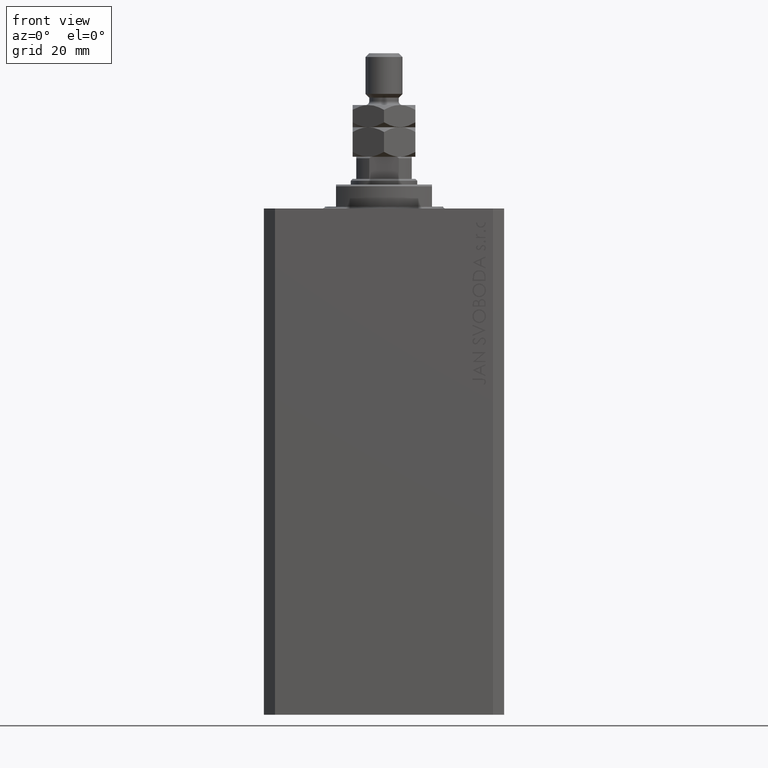
[diagram: clean part render]
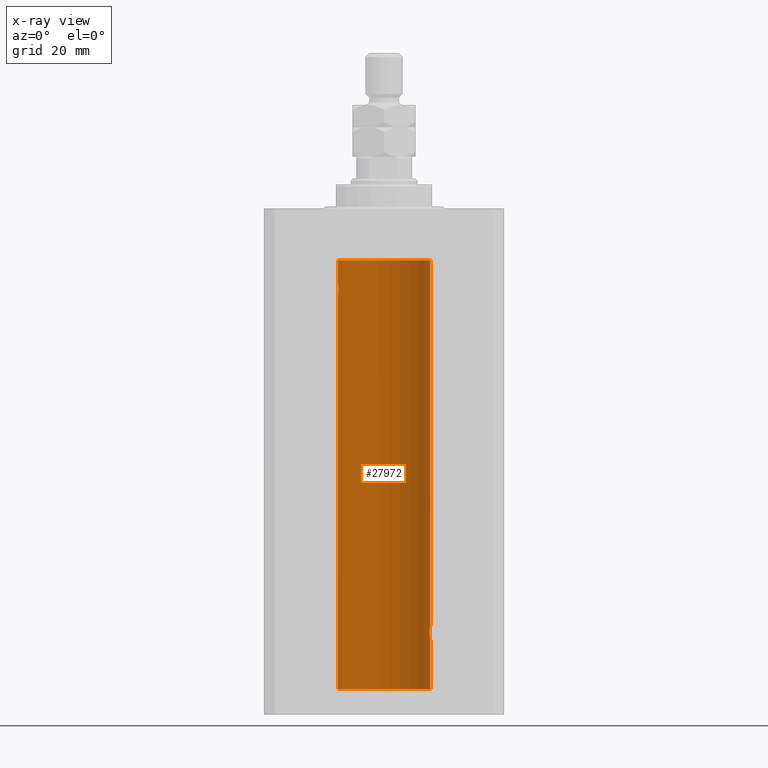
[diagram: x-ray — body ghosted, one internal face saturated and labeled with its STEP entity id]
A machine part, front view, then the same camera in x-ray: the body is ghosted and one INTERNAL B-rep face — a face not visible from any outside direction — is saturated and labeled: STEP entity #27972.
In plain terms, the highlighted cylindrical surface (partial cylindrical patch) has radius 12.5 mm, axis along (0, 0, 1).
Its self-contained STEP definition (entity closure, byte-faithful):
#216 = CARTESIAN_POINT ( 'NONE',  ( 12.34779119491631683, 1.947363444907009633, -115.5250277516825861 ) ) ;
#410 = ORIENTED_EDGE ( 'NONE', *, *, #29323, .T. ) ;
#990 = FACE_OUTER_BOUND ( 'NONE', #2066, .T. ) ;
#2066 = EDGE_LOOP ( 'NONE', ( #10786, #28945, #34960, #20145, #10542, #410, #36216, #27094, #30221 ) ) ;
#2603 = CARTESIAN_POINT ( 'NONE',  ( -12.43019346654084956, 1.322451657002078340, -20.49398366327208620 ) ) ;
#2931 = VERTEX_POINT ( 'NONE', #33402 ) ;
#3010 = CARTESIAN_POINT ( 'NONE',  ( 12.50000000000000000, 0.000000000000000000, -13.99999999999999822 ) ) ;
#3338 = CARTESIAN_POINT ( 'NONE',  ( -12.33895470450623044, 2.000049200055401766, -22.12992629360264729 ) ) ;
#3441 = CARTESIAN_POINT ( 'NONE',  ( 12.44079900692650931, 1.220007525301739282, -116.5901757908366534 ) ) ;
#3461 = VERTEX_POINT ( 'NONE', #34780 ) ;
#5077 = CARTESIAN_POINT ( 'NONE',  ( 12.46910683544638232, 0.8866026273585037032, -113.2024786368969700 ) ) ;
#5289 = LINE ( 'NONE', #31692, #35742 ) ;
#6055 = CARTESIAN_POINT ( 'NONE',  ( -12.40913174964213184, 1.507394620545641439, -23.32102833500698225 ) ) ;
#6288 = CARTESIAN_POINT ( 'NONE',  ( -12.46021263690096958, 1.002494658017156981, -20.26446744561863156 ) ) ;
#6546 = CARTESIAN_POINT ( 'NONE',  ( -12.44076681548080288, 1.220297236145718944, -23.58991408680628155 ) ) ;
#7782 = CARTESIAN_POINT ( 'NONE',  ( 12.50000000000000000, -7.266276684081261841E-23, -113.0000000000000142 ) ) ;
#8104 = VERTEX_POINT ( 'NONE', #18852 ) ;
#8530 = VERTEX_POINT ( 'NONE', #3010 ) ;
#9747 = CARTESIAN_POINT ( 'NONE',  ( -12.46903010196599304, 0.8876934327478135378, -20.20300788371381984 ) ) ;
#10542 = ORIENTED_EDGE ( 'NONE', *, *, #26841, .T. ) ;
#10589 = CARTESIAN_POINT ( 'NONE',  ( 12.33896267925302759, 2.000000000000248246, -115.2614317422079040 ) ) ;
#10786 = ORIENTED_EDGE ( 'NONE', *, *, #18906, .F. ) ;
#10987 = EDGE_CURVE ( 'NONE', #12919, #43431, #5289, .T. ) ;
#11230 = CARTESIAN_POINT ( 'NONE',  ( 0.000000000000000000, 0.000000000000000000, -130.0999999999999943 ) ) ;
#11305 = CARTESIAN_POINT ( 'NONE',  ( 12.50000000000000000, 0.000000000000000000, -130.0999999999999943 ) ) ;
#11680 = CARTESIAN_POINT ( 'NONE',  ( -12.50000000000000533, 0.1306394121199390135, -24.00000000000000711 ) ) ;
#11731 = CARTESIAN_POINT ( 'NONE',  ( 12.44079117518645639, 1.220047488436368122, -113.4098967633508437 ) ) ;
#12032 = DIRECTION ( 'NONE',  ( 0.000000000000000000, 0.000000000000000000, 1.000000000000000000 ) ) ;
#12308 = B_SPLINE_CURVE_WITH_KNOTS ( 'NONE', 3,
 ( #17880, #43541, #37122, #40079, #29229, #9747, #6288, #44272, #2603, #32697, #25280, #14428, #29477, #3338, #22074, #47726, #13938, #18369, #24791, #39846, #6055, #21091, #6546, #36142, #21588, #36632, #26006, #34625, #11680, #45468 ),
 .UNSPECIFIED., .F., .F.,
 ( 4, 2, 2, 2, 2, 2, 2, 2, 2, 2, 2, 2, 2, 2, 4 ),
 ( 1.814683826656258666E-20, 0.0003914362731607577369, 0.0007828725463215154739, 0.001174308819482273265, 0.001565745092643030948, 0.002348617638964546530, 0.003131490185286061895, 0.003522926458446825216, 0.003914362731607588103, 0.004305799004768351423, 0.004697235277929114744, 0.005088671551089878065, 0.005480107824250641385, 0.005871544097411404706, 0.006262980370572168026 ),
 .UNSPECIFIED. ) ;
#12463 = CARTESIAN_POINT ( 'NONE',  ( 12.37021546997940291, 1.797317011867403114, -114.1129511974108510 ) ) ;
#12919 = VERTEX_POINT ( 'NONE', #18296 ) ;
#13485 = EDGE_CURVE ( 'NONE', #38896, #8104, #14769, .T. ) ;
#13938 = CARTESIAN_POINT ( 'NONE',  ( -12.35517291625592051, 1.897967064543089721, -22.64415233770293412 ) ) ;
#14041 = CARTESIAN_POINT ( 'NONE',  ( 12.50000000000000000, 2.320363022323678888E-15, -117.0000000000000142 ) ) ;
#14363 = CARTESIAN_POINT ( 'NONE',  ( 12.50000000000000000, 0.000000000000000000, -130.0999999999999943 ) ) ;
#14428 = CARTESIAN_POINT ( 'NONE',  ( -12.34781876294798053, 1.947190906025043633, -21.47436412829509678 ) ) ;
#14769 = LINE ( 'NONE', #11305, #19737 ) ;
#15674 = CARTESIAN_POINT ( 'NONE',  ( 12.35520276972935427, 1.897773362058238877, -114.3552827863433947 ) ) ;
#16433 = EDGE_CURVE ( 'NONE', #38896, #22159, #44149, .T. ) ;
#16774 = CARTESIAN_POINT ( 'NONE',  ( 12.49789833780794446, 0.2625555164371021766, -116.9869817082214922 ) ) ;
#16977 = AXIS2_PLACEMENT_3D ( 'NONE', #42907, #22115, #36676 ) ;
#17880 = CARTESIAN_POINT ( 'NONE',  ( -12.50000000000000000, 1.867773856434666690E-17, -20.00000000000000000 ) ) ;
#17919 = CYLINDRICAL_SURFACE ( 'NONE', #16977, 12.50000000000000000 ) ;
#17981 = CARTESIAN_POINT ( 'NONE',  ( 12.46901623405144122, 0.8878913781257877780, -116.7968965171755258 ) ) ;
#18296 = CARTESIAN_POINT ( 'NONE',  ( -12.50000000000000000, 1.867773856434666690E-17, -20.00000000000000000 ) ) ;
#18369 = CARTESIAN_POINT ( 'NONE',  ( -12.37018026341338839, 1.797558627508998086, -22.88656313533016373 ) ) ;
#18852 = CARTESIAN_POINT ( 'NONE',  ( 12.50000000000000000, 2.320363022323678888E-15, -117.0000000000000142 ) ) ;
#18906 = EDGE_CURVE ( 'NONE', #22159, #25481, #40262, .T. ) ;
#18968 = AXIS2_PLACEMENT_3D ( 'NONE', #11230, #41314, #29258 ) ;
#19142 = CARTESIAN_POINT ( 'NONE',  ( 12.49788668346399945, 0.2632864803365707607, -113.0130897583833587 ) ) ;
#19737 = VECTOR ( 'NONE', #45093, 1000.000000000000000 ) ;
#20145 = ORIENTED_EDGE ( 'NONE', *, *, #28903, .T. ) ;
#20918 = CARTESIAN_POINT ( 'NONE',  ( 12.50000000000000000, 0.000000000000000000, -130.0999999999999943 ) ) ;
#21091 = CARTESIAN_POINT ( 'NONE',  ( -12.43034574091277911, 1.321095788880539024, -23.50733550364322255 ) ) ;
#21471 = CARTESIAN_POINT ( 'NONE',  ( -12.50000000000000000, 1.530808498934191521E-15, -130.0999999999999943 ) ) ;
#21588 = CARTESIAN_POINT ( 'NONE',  ( -12.46909283808506430, 0.8868029758979402155, -23.79742491916155345 ) ) ;
#22074 = CARTESIAN_POINT ( 'NONE',  ( -12.34109209020652465, 1.986986967296539897, -22.26269462454597914 ) ) ;
#22115 = DIRECTION ( 'NONE',  ( -0.000000000000000000, -0.000000000000000000, 1.000000000000000000 ) ) ;
#22159 = VERTEX_POINT ( 'NONE', #21471 ) ;
#22178 = CARTESIAN_POINT ( 'NONE',  ( 12.39869754437268590, 1.598954131913722820, -116.2293215281301286 ) ) ;
#22416 = CARTESIAN_POINT ( 'NONE',  ( 12.37760587642916477, 1.747868572747719229, -116.0063965316900152 ) ) ;
#22576 = CIRCLE ( 'NONE', #35962, 12.50000000000000000 ) ;
#23321 = CARTESIAN_POINT ( 'NONE',  ( 12.34110728646152388, 1.986893050944454453, -114.7366134776498541 ) ) ;
#23813 = CARTESIAN_POINT ( 'NONE',  ( 12.46011632531798874, 1.003644408234883434, -113.2651679968767127 ) ) ;
#24058 = CARTESIAN_POINT ( 'NONE',  ( -12.50000000000000000, 1.530808498934191521E-15, -13.99999999999999822 ) ) ;
#24791 = CARTESIAN_POINT ( 'NONE',  ( -12.37922086519035325, 1.734998657226764829, -23.00335814299181436 ) ) ;
#25211 = DIRECTION ( 'NONE',  ( -0.000000000000000000, -0.000000000000000000, 1.000000000000000000 ) ) ;
#25280 = CARTESIAN_POINT ( 'NONE',  ( -12.37764291807175354, 1.747608771958140794, -20.99316879552500481 ) ) ;
#25392 = CARTESIAN_POINT ( 'NONE',  ( 12.46019522898365217, 1.002712894177336223, -116.7354089602759899 ) ) ;
#25481 = VERTEX_POINT ( 'NONE', #35903 ) ;
#25717 = VECTOR ( 'NONE', #25211, 1000.000000000000000 ) ;
#26006 = CARTESIAN_POINT ( 'NONE',  ( -12.48983485452574982, 0.5201193324741355539, -23.93561774521849372 ) ) ;
#26841 = EDGE_CURVE ( 'NONE', #3461, #2931, #38373, .T. ) ;
#27094 = ORIENTED_EDGE ( 'NONE', *, *, #10987, .F. ) ;
#27268 = CARTESIAN_POINT ( 'NONE',  ( 12.39867611624532806, 1.590019252152828910, -113.7798449592961276 ) ) ;
#27972 = ADVANCED_FACE ( 'NONE', ( #990 ), #17919, .F. ) ;
#28903 = EDGE_CURVE ( 'NONE', #8104, #3461, #30595, .T. ) ;
#28945 = ORIENTED_EDGE ( 'NONE', *, *, #16433, .F. ) ;
#29229 = CARTESIAN_POINT ( 'NONE',  ( -12.48390768591463207, 0.6455696738844916016, -20.10252270298193977 ) ) ;
#29258 = DIRECTION ( 'NONE',  ( 1.000000000000000000, 0.000000000000000000, 0.000000000000000000 ) ) ;
#29323 = EDGE_CURVE ( 'NONE', #2931, #8530, #47169, .T. ) ;
#29402 = CARTESIAN_POINT ( 'NONE',  ( -12.50000000000000000, 1.530808498934191521E-15, -130.0999999999999943 ) ) ;
#29477 = CARTESIAN_POINT ( 'NONE',  ( -12.33897869807161385, 1.999901172190678089, -21.73788193668374547 ) ) ;
#30221 = ORIENTED_EDGE ( 'NONE', *, *, #38244, .T. ) ;
#30304 = CARTESIAN_POINT ( 'NONE',  ( 12.33896267925302759, 2.000000000000247802, -115.0000000000000142 ) ) ;
#30490 = CARTESIAN_POINT ( 'NONE',  ( 12.34924836377099844, 1.935649219704934865, -114.4800206212716631 ) ) ;
#30595 = B_SPLINE_CURVE_WITH_KNOTS ( 'NONE', 3,
 ( #14041, #44135, #16774, #37227, #41392, #17981, #25392, #3441, #33301, #22178, #22416, #216, #10589, #30304 ),
 .UNSPECIFIED., .F., .F.,
 ( 4, 2, 2, 2, 2, 2, 4 ),
 ( 2.254408494944823136E-18, 0.0003915305205218102386, 0.0007830610410436180920, 0.001174591561565426108, 0.001566122082087234016, 0.002349183123130850048, 0.003132244164174466730 ),
 .UNSPECIFIED. ) ;
#31268 = DIRECTION ( 'NONE',  ( 1.000000000000000000, 0.000000000000000000, 0.000000000000000000 ) ) ;
#31692 = CARTESIAN_POINT ( 'NONE',  ( -12.50000000000000000, 1.530808498934191521E-15, -130.0999999999999943 ) ) ;
#32146 = CARTESIAN_POINT ( 'NONE',  ( 12.43037348241797524, 1.320834183883837554, -113.4924383770429728 ) ) ;
#32426 = DIRECTION ( 'NONE',  ( -0.000000000000000000, -0.000000000000000000, 1.000000000000000000 ) ) ;
#32697 = CARTESIAN_POINT ( 'NONE',  ( -12.39873273758732175, 1.598680238462371062, -20.77033506126851137 ) ) ;
#33301 = CARTESIAN_POINT ( 'NONE',  ( 12.43016561391612917, 1.322713721413880661, -116.5057887783670196 ) ) ;
#33402 = CARTESIAN_POINT ( 'NONE',  ( 12.50000000000000000, -7.266276684081261841E-23, -113.0000000000000142 ) ) ;
#34210 = CARTESIAN_POINT ( 'NONE',  ( 12.40916530024876430, 1.507117913375715990, -113.6786595504900674 ) ) ;
#34625 = CARTESIAN_POINT ( 'NONE',  ( -12.49788564268284041, 0.2633501011236127343, -23.98690384766255335 ) ) ;
#34659 = EDGE_CURVE ( 'NONE', #8530, #43431, #22576, .T. ) ;
#34679 = CARTESIAN_POINT ( 'NONE',  ( 12.48983962833819028, 0.5199974825204898288, -113.0643516080801874 ) ) ;
#34780 = CARTESIAN_POINT ( 'NONE',  ( 12.33896267925302759, 2.000000000000247802, -115.0000000000000142 ) ) ;
#34960 = ORIENTED_EDGE ( 'NONE', *, *, #13485, .T. ) ;
#34969 = CARTESIAN_POINT ( 'NONE',  ( 0.000000000000000000, 0.000000000000000000, -13.99999999999999822 ) ) ;
#35742 = VECTOR ( 'NONE', #32426, 1000.000000000000000 ) ;
#35903 = CARTESIAN_POINT ( 'NONE',  ( -12.50000000000000000, 1.530808426276628993E-15, -23.99999999999999645 ) ) ;
#35962 = AXIS2_PLACEMENT_3D ( 'NONE', #34969, #12032, #31268 ) ;
#36136 = VECTOR ( 'NONE', #36562, 1000.000000000000000 ) ;
#36142 = CARTESIAN_POINT ( 'NONE',  ( -12.46009879577771606, 1.003863686549169465, -23.73470742397611843 ) ) ;
#36216 = ORIENTED_EDGE ( 'NONE', *, *, #34659, .T. ) ;
#36562 = DIRECTION ( 'NONE',  ( -0.000000000000000000, -0.000000000000000000, 1.000000000000000000 ) ) ;
#36632 = CARTESIAN_POINT ( 'NONE',  ( -12.48394649977302073, 0.6448065707253024526, -23.89773031393659153 ) ) ;
#36676 = DIRECTION ( 'NONE',  ( 1.000000000000000000, 0.000000000000000000, 0.000000000000000000 ) ) ;
#37122 = CARTESIAN_POINT ( 'NONE',  ( -12.49789934882883458, 0.2624928479599910047, -20.01301208516349917 ) ) ;
#37227 = CARTESIAN_POINT ( 'NONE',  ( 12.48989642018887736, 0.5185418732824252919, -116.9360129218760846 ) ) ;
#38244 = EDGE_CURVE ( 'NONE', #12919, #25481, #12308, .T. ) ;
#38373 = B_SPLINE_CURVE_WITH_KNOTS ( 'NONE', 3,
 ( #41576, #45519, #23321, #30490, #15674, #12463, #42548, #27268, #34210, #32146, #11731, #23813, #5077, #41829, #34679, #19142, #42063, #7782 ),
 .UNSPECIFIED., .F., .F.,
 ( 4, 2, 2, 2, 2, 2, 2, 2, 4 ),
 ( 0.003132244164174466730, 0.003523586189974241625, 0.003914928215774016521, 0.004306270241573791416, 0.004697612267373566311, 0.005088954293173341206, 0.005480296318973116101, 0.005871638344772890997, 0.006262980370572665892 ),
 .UNSPECIFIED. ) ;
#38896 = VERTEX_POINT ( 'NONE', #20918 ) ;
#39846 = CARTESIAN_POINT ( 'NONE',  ( -12.39864157855465088, 1.590288205413973532, -23.21980790594580313 ) ) ;
#40079 = CARTESIAN_POINT ( 'NONE',  ( -12.48990118705761532, 0.5184196815546056047, -20.06395648222637007 ) ) ;
#40262 = LINE ( 'NONE', #29402, #36136 ) ;
#41314 = DIRECTION ( 'NONE',  ( 0.000000000000000000, 0.000000000000000000, 1.000000000000000000 ) ) ;
#41392 = CARTESIAN_POINT ( 'NONE',  ( 12.48390005916863110, 0.6457215011736527899, -116.8974277155426904 ) ) ;
#41576 = CARTESIAN_POINT ( 'NONE',  ( 12.33896267925302759, 2.000000000000247802, -115.0000000000000142 ) ) ;
#41829 = CARTESIAN_POINT ( 'NONE',  ( 12.48395395845270528, 0.6446573166014707423, -113.1022212421351583 ) ) ;
#42063 = CARTESIAN_POINT ( 'NONE',  ( 12.49999999999999822, 0.1306079576516667173, -113.0000000000000284 ) ) ;
#42548 = CARTESIAN_POINT ( 'NONE',  ( 12.37925647381943506, 1.734744884174218571, -113.9962073259865321 ) ) ;
#42907 = CARTESIAN_POINT ( 'NONE',  ( 0.000000000000000000, 0.000000000000000000, -130.0999999999999943 ) ) ;
#43431 = VERTEX_POINT ( 'NONE', #24058 ) ;
#43541 = CARTESIAN_POINT ( 'NONE',  ( -12.50000000000000000, 0.1323736289504353625, -20.00000000000000000 ) ) ;
#44135 = CARTESIAN_POINT ( 'NONE',  ( 12.50000000000000178, 0.1324055009716466613, -117.0000000000000426 ) ) ;
#44149 = CIRCLE ( 'NONE', #18968, 12.50000000000000000 ) ;
#44272 = CARTESIAN_POINT ( 'NONE',  ( -12.44082361696003503, 1.219754986802281449, -20.40963319990594016 ) ) ;
#45093 = DIRECTION ( 'NONE',  ( -0.000000000000000000, -0.000000000000000000, 1.000000000000000000 ) ) ;
#45468 = CARTESIAN_POINT ( 'NONE',  ( -12.50000000000000000, 1.530808426276628993E-15, -23.99999999999999645 ) ) ;
#45519 = CARTESIAN_POINT ( 'NONE',  ( 12.33896267925302581, 2.000000000000247358, -114.8693470594992334 ) ) ;
#47169 = LINE ( 'NONE', #14363, #25717 ) ;
#47726 = CARTESIAN_POINT ( 'NONE',  ( -12.34922241902463114, 1.935814255713574239, -22.51937350851555308 ) ) ;